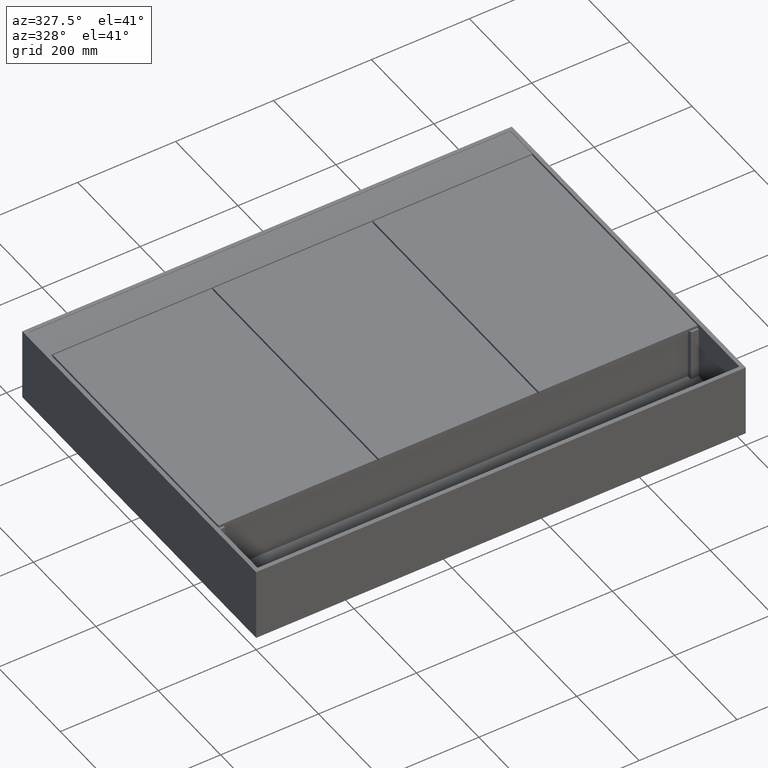
[diagram: clean part render]
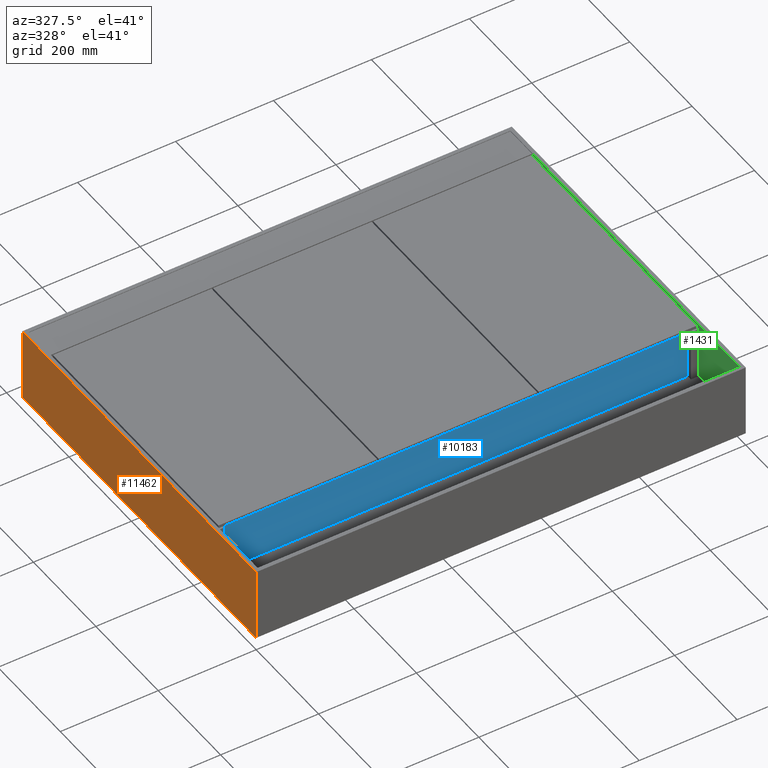
[diagram: same view with three faces highlighted in distinct colors, each labeled with its STEP entity id]
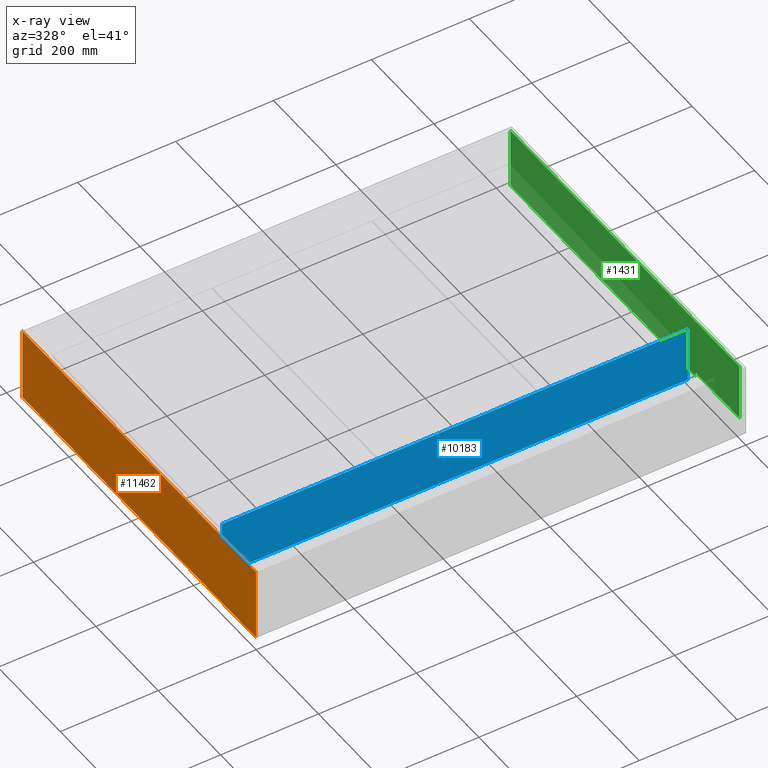
[diagram: x-ray of the same camera — body ghosted, the three highlighted faces saturated]
A machine part, auxiliary view with three faces highlighted in distinct colors.
The next image is the same camera in x-ray (body ghosted, the three faces saturated) — at least one of them is partly hidden behind the body in this view.
Their STEP definitions:

[orange] entity #11462 — the highlighted planar face has unit normal (1, 0, -0).
#212 = EDGE_CURVE ( 'NONE', #2874, #349, #878, .T. ) ;
#349 = VERTEX_POINT ( 'NONE', #13696 ) ;
#781 = FACE_OUTER_BOUND ( 'NONE', #9361, .T. ) ;
#850 = VERTEX_POINT ( 'NONE', #3514 ) ;
#878 = LINE ( 'NONE', #6357, #6282 ) ;
#1287 = LINE ( 'NONE', #6763, #6821 ) ;
#2874 = VERTEX_POINT ( 'NONE', #8822 ) ;
#3407 = EDGE_CURVE ( 'NONE', #16533, #349, #17359, .T. ) ;
#3514 = CARTESIAN_POINT ( 'NONE',  ( -1.734723475976807094E-15, 750.0000000000001137, -150.0000000000000568 ) ) ;
#4912 = DIRECTION ( 'NONE',  ( -4.336808689942014655E-18, -1.533817848799926770E-18, -1.000000000000000000 ) ) ;
#5116 = CARTESIAN_POINT ( 'NONE',  ( -8.673617379884035472E-16, -5.551115123125782702E-14, -150.0000000000000568 ) ) ;
#6258 = PLANE ( 'NONE',  #16715 ) ;
#6282 = VECTOR ( 'NONE', #11811, 1000.000000000000000 ) ;
#6357 = CARTESIAN_POINT ( 'NONE',  ( -2.602085213965210642E-15, 900.2131818450036462, 5.551115123125782702E-14 ) ) ;
#6503 = LINE ( 'NONE', #11950, #12726 ) ;
#6763 = CARTESIAN_POINT ( 'NONE',  ( -1.734723475976807094E-15, 750.0000000000001137, -150.0000000000000568 ) ) ;
#6821 = VECTOR ( 'NONE', #12208, 1000.000000000000000 ) ;
#8822 = CARTESIAN_POINT ( 'NONE',  ( 0.0000000000000000000, 750.0000000000000000, 4.163336342344337027E-14 ) ) ;
#9237 = VECTOR ( 'NONE', #10568, 1000.000000000000000 ) ;
#9361 = EDGE_LOOP ( 'NONE', ( #14778, #16789, #15541, #14469 ) ) ;
#10568 = DIRECTION ( 'NONE',  ( 4.336808689942014655E-18, 1.533817848799926770E-18, 1.000000000000000000 ) ) ;
#11462 = ADVANCED_FACE ( 'NONE', ( #781 ), #6258, .F. ) ;
#11707 = CARTESIAN_POINT ( 'NONE',  ( -1.301042606982605321E-15, 900.2131818450034189, -150.0000000000000853 ) ) ;
#11811 = DIRECTION ( 'NONE',  ( -6.776263578034401509E-20, -1.000000000000000000, -1.750605343737824841E-18 ) ) ;
#11948 = EDGE_CURVE ( 'NONE', #850, #16533, #6503, .T. ) ;
#11950 = CARTESIAN_POINT ( 'NONE',  ( -1.301042606982605321E-15, 900.2131818450034189, -150.0000000000000853 ) ) ;
#12208 = DIRECTION ( 'NONE',  ( 4.336808689942014655E-18, 1.533817848799926770E-18, 1.000000000000000000 ) ) ;
#12726 = VECTOR ( 'NONE', #17399, 1000.000000000000000 ) ;
#13696 = CARTESIAN_POINT ( 'NONE',  ( 0.0000000000000000000, -2.220446049250313081E-13, 6.938893903907228378E-14 ) ) ;
#14469 = ORIENTED_EDGE ( 'NONE', *, *, #212, .F. ) ;
#14778 = ORIENTED_EDGE ( 'NONE', *, *, #15277, .F. ) ;
#15277 = EDGE_CURVE ( 'NONE', #850, #2874, #1287, .T. ) ;
#15541 = ORIENTED_EDGE ( 'NONE', *, *, #3407, .T. ) ;
#16533 = VERTEX_POINT ( 'NONE', #16790 ) ;
#16715 = AXIS2_PLACEMENT_3D ( 'NONE', #11707, #17154, #4912 ) ;
#16789 = ORIENTED_EDGE ( 'NONE', *, *, #11948, .T. ) ;
#16790 = CARTESIAN_POINT ( 'NONE',  ( -8.673617379884035472E-16, -5.551115123125782702E-14, -150.0000000000000568 ) ) ;
#17154 = DIRECTION ( 'NONE',  ( 1.000000000000000000, 5.421010862427520364E-20, -4.336808689942014655E-18 ) ) ;
#17359 = LINE ( 'NONE', #5116, #9237 ) ;
#17399 = DIRECTION ( 'NONE',  ( -6.776263578034401509E-20, -1.000000000000000000, -1.750605343737824841E-18 ) ) ;

[blue] entity #10183 — the highlighted planar face has unit normal (0, 1, 0).
#921 = VERTEX_POINT ( 'NONE', #9072 ) ;
#1580 = EDGE_CURVE ( 'NONE', #1932, #5103, #13878, .T. ) ;
#1607 = CARTESIAN_POINT ( 'NONE',  ( 975.9999999999998863, 148.0000000000000284, 942.1344442882001431 ) ) ;
#1618 = LINE ( 'NONE', #7097, #17192 ) ;
#1932 = VERTEX_POINT ( 'NONE', #10809 ) ;
#2033 = CARTESIAN_POINT ( 'NONE',  ( 24.00000000000013145, 148.0000000000000284, 942.1344442882001431 ) ) ;
#2341 = VECTOR ( 'NONE', #16081, 1000.000000000000000 ) ;
#3262 = CARTESIAN_POINT ( 'NONE',  ( 24.00000000000013145, 148.0000000000000284, -9.999999999999896971 ) ) ;
#4793 = EDGE_CURVE ( 'NONE', #9332, #921, #5160, .T. ) ;
#5103 = VERTEX_POINT ( 'NONE', #17034 ) ;
#5160 = LINE ( 'NONE', #10617, #2341 ) ;
#7085 = DIRECTION ( 'NONE',  ( 3.841474503381897631E-36, 0.0000000000000000000, -1.000000000000000000 ) ) ;
#7097 = CARTESIAN_POINT ( 'NONE',  ( 24.00000000000013145, 148.0000000000000284, -124.9999999999999432 ) ) ;
#7388 = ORIENTED_EDGE ( 'NONE', *, *, #1580, .F. ) ;
#7462 = CARTESIAN_POINT ( 'NONE',  ( 24.00000000000013145, 148.0000000000000284, -9.999999999999896971 ) ) ;
#7515 = DIRECTION ( 'NONE',  ( 0.0000000000000000000, 1.000000000000000000, 0.0000000000000000000 ) ) ;
#8122 = AXIS2_PLACEMENT_3D ( 'NONE', #2033, #7515, #12962 ) ;
#8360 = VECTOR ( 'NONE', #7085, 1000.000000000000000 ) ;
#8733 = DIRECTION ( 'NONE',  ( 1.000000000000000000, 0.0000000000000000000, -3.841474503381897631E-36 ) ) ;
#8862 = FACE_OUTER_BOUND ( 'NONE', #16345, .T. ) ;
#8894 = EDGE_CURVE ( 'NONE', #921, #5103, #1618, .T. ) ;
#9072 = CARTESIAN_POINT ( 'NONE',  ( 24.00000000000013145, 148.0000000000000284, -124.9999999999999432 ) ) ;
#9303 = EDGE_CURVE ( 'NONE', #9332, #1932, #15523, .T. ) ;
#9332 = VERTEX_POINT ( 'NONE', #7462 ) ;
#10183 = ADVANCED_FACE ( 'NONE', ( #8862 ), #14300, .F. ) ;
#10458 = ORIENTED_EDGE ( 'NONE', *, *, #9303, .F. ) ;
#10617 = CARTESIAN_POINT ( 'NONE',  ( 24.00000000000013145, 148.0000000000000284, 942.1344442882001431 ) ) ;
#10809 = CARTESIAN_POINT ( 'NONE',  ( 975.9999999999998863, 148.0000000000000284, -9.999999999999896971 ) ) ;
#12536 = DIRECTION ( 'NONE',  ( 1.000000000000000000, 0.0000000000000000000, -3.841474503381897631E-36 ) ) ;
#12962 = DIRECTION ( 'NONE',  ( -3.841474503381897631E-36, 0.0000000000000000000, 1.000000000000000000 ) ) ;
#13878 = LINE ( 'NONE', #1607, #8360 ) ;
#14300 = PLANE ( 'NONE',  #8122 ) ;
#15351 = ORIENTED_EDGE ( 'NONE', *, *, #8894, .T. ) ;
#15523 = LINE ( 'NONE', #3262, #15783 ) ;
#15783 = VECTOR ( 'NONE', #8733, 1000.000000000000000 ) ;
#15860 = ORIENTED_EDGE ( 'NONE', *, *, #4793, .T. ) ;
#16081 = DIRECTION ( 'NONE',  ( 3.841474503381897631E-36, 0.0000000000000000000, -1.000000000000000000 ) ) ;
#16345 = EDGE_LOOP ( 'NONE', ( #10458, #15860, #15351, #7388 ) ) ;
#17034 = CARTESIAN_POINT ( 'NONE',  ( 975.9999999999998863, 148.0000000000000284, -124.9999999999999432 ) ) ;
#17192 = VECTOR ( 'NONE', #12536, 1000.000000000000000 ) ;

[green] entity #1431 — the highlighted planar face has unit normal (1, 0, 0).
#168 = EDGE_CURVE ( 'NONE', #15745, #8721, #15742, .T. ) ;
#712 = EDGE_LOOP ( 'NONE', ( #9803, #4857, #15829, #13789, #12055, #14739 ) ) ;
#1142 = CARTESIAN_POINT ( 'NONE',  ( 992.0000000000000000, 742.0000000000000000, -150.0000000000000284 ) ) ;
#1431 = ADVANCED_FACE ( 'NONE', ( #16204 ), #3945, .F. ) ;
#1871 = LINE ( 'NONE', #7349, #3011 ) ;
#2123 = VECTOR ( 'NONE', #8866, 1000.000000000000000 ) ;
#2509 = EDGE_CURVE ( 'NONE', #3298, #6945, #13408, .T. ) ;
#2594 = DIRECTION ( 'NONE',  ( 2.602085213965208716E-18, -1.893700972264597434E-18, -1.000000000000000000 ) ) ;
#3011 = VECTOR ( 'NONE', #12790, 1000.000000000000000 ) ;
#3298 = VERTEX_POINT ( 'NONE', #3417 ) ;
#3393 = CARTESIAN_POINT ( 'NONE',  ( 992.0000000000000000, 8.000000000000117240, -150.0000000000000284 ) ) ;
#3417 = CARTESIAN_POINT ( 'NONE',  ( 992.0000000000000000, 742.0000000000000000, 6.938893903907228378E-14 ) ) ;
#3488 = CARTESIAN_POINT ( 'NONE',  ( 992.0000000000000000, 900.2131818450031915, -117.0000000000000284 ) ) ;
#3945 = PLANE ( 'NONE',  #16311 ) ;
#4711 = DIRECTION ( 'NONE',  ( 0.0000000000000000000, -1.000000000000000000, -2.327381841258800363E-18 ) ) ;
#4857 = ORIENTED_EDGE ( 'NONE', *, *, #168, .T. ) ;
#5026 = DIRECTION ( 'NONE',  ( -2.602085213965209101E-18, 1.893700972264597434E-18, 1.000000000000000000 ) ) ;
#5353 = VERTEX_POINT ( 'NONE', #9713 ) ;
#6618 = DIRECTION ( 'NONE',  ( 2.602085213965209101E-18, -1.893700972264597434E-18, -1.000000000000000000 ) ) ;
#6945 = VERTEX_POINT ( 'NONE', #11343 ) ;
#7204 = VERTEX_POINT ( 'NONE', #16248 ) ;
#7349 = CARTESIAN_POINT ( 'NONE',  ( 992.0000000000000000, 750.0000000000000000, -125.0000000000001705 ) ) ;
#7495 = VECTOR ( 'NONE', #5026, 1000.000000000000000 ) ;
#7946 = EDGE_CURVE ( 'NONE', #7204, #15745, #11822, .T. ) ;
#8721 = VERTEX_POINT ( 'NONE', #17354 ) ;
#8866 = DIRECTION ( 'NONE',  ( -2.602085213965209101E-18, 1.893700972264597434E-18, 1.000000000000000000 ) ) ;
#8968 = DIRECTION ( 'NONE',  ( 0.0000000000000000000, -1.000000000000000000, -9.860654646122132307E-17 ) ) ;
#9409 = CARTESIAN_POINT ( 'NONE',  ( 992.0000000000000000, 900.2131818450036462, -150.0000000000000853 ) ) ;
#9713 = CARTESIAN_POINT ( 'NONE',  ( 992.0000000000000000, 7.999999999999785061, 8.326672684688674053E-14 ) ) ;
#9803 = ORIENTED_EDGE ( 'NONE', *, *, #7946, .T. ) ;
#10342 = VECTOR ( 'NONE', #6618, 1000.000000000000000 ) ;
#11343 = CARTESIAN_POINT ( 'NONE',  ( 992.0000000000000000, 742.0000000000000000, -125.0000000000002274 ) ) ;
#11365 = EDGE_CURVE ( 'NONE', #7204, #6945, #1871, .T. ) ;
#11415 = EDGE_CURVE ( 'NONE', #8721, #5353, #15656, .T. ) ;
#11502 = LINE ( 'NONE', #16957, #15883 ) ;
#11822 = LINE ( 'NONE', #17272, #7495 ) ;
#12055 = ORIENTED_EDGE ( 'NONE', *, *, #2509, .T. ) ;
#12374 = CARTESIAN_POINT ( 'NONE',  ( 992.0000000000000000, 147.9999999999999147, -117.0000000000000995 ) ) ;
#12790 = DIRECTION ( 'NONE',  ( -1.355252715606880543E-20, 1.000000000000000000, -1.093478242049123091E-16 ) ) ;
#13408 = LINE ( 'NONE', #1142, #10342 ) ;
#13789 = ORIENTED_EDGE ( 'NONE', *, *, #14230, .F. ) ;
#14230 = EDGE_CURVE ( 'NONE', #3298, #5353, #11502, .T. ) ;
#14739 = ORIENTED_EDGE ( 'NONE', *, *, #11365, .F. ) ;
#14867 = DIRECTION ( 'NONE',  ( 1.000000000000000000, 2.710505431213760483E-20, 2.602085213965208716E-18 ) ) ;
#15656 = LINE ( 'NONE', #3393, #2123 ) ;
#15742 = LINE ( 'NONE', #3488, #16851 ) ;
#15745 = VERTEX_POINT ( 'NONE', #12374 ) ;
#15829 = ORIENTED_EDGE ( 'NONE', *, *, #11415, .T. ) ;
#15883 = VECTOR ( 'NONE', #4711, 1000.000000000000000 ) ;
#16204 = FACE_OUTER_BOUND ( 'NONE', #712, .T. ) ;
#16248 = CARTESIAN_POINT ( 'NONE',  ( 992.0000000000000000, 147.9999999999999147, -125.0000000000001137 ) ) ;
#16311 = AXIS2_PLACEMENT_3D ( 'NONE', #9409, #14867, #2594 ) ;
#16851 = VECTOR ( 'NONE', #8968, 1000.000000000000000 ) ;
#16957 = CARTESIAN_POINT ( 'NONE',  ( 992.0000000000000000, 900.2131818450031915, 8.326672684688674053E-14 ) ) ;
#17272 = CARTESIAN_POINT ( 'NONE',  ( 992.0000000000000000, 148.0000000000000568, -150.0000000000000284 ) ) ;
#17354 = CARTESIAN_POINT ( 'NONE',  ( 992.0000000000000000, 8.000000000000007105, -117.0000000000001279 ) ) ;